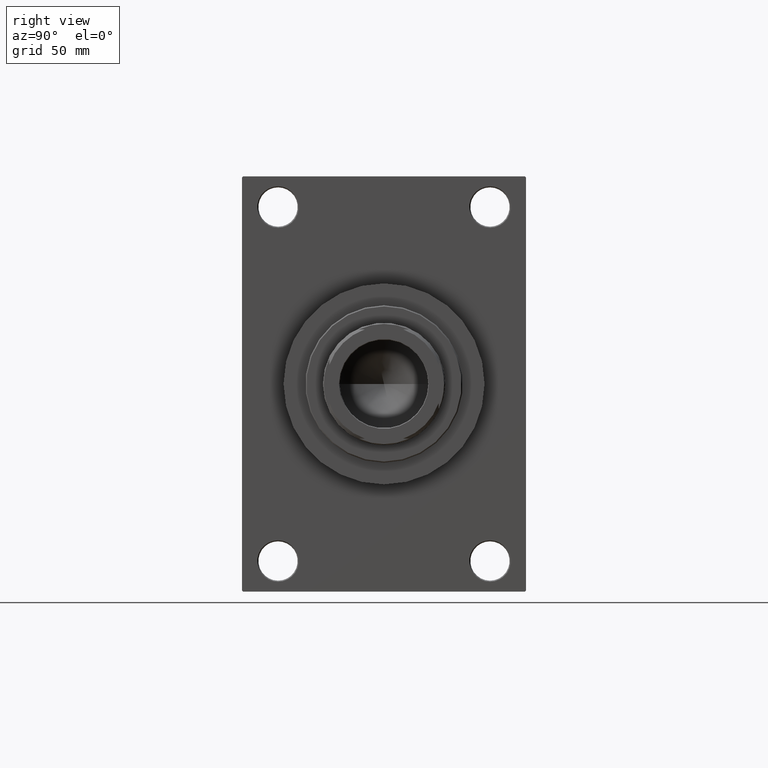
[diagram: clean part render]
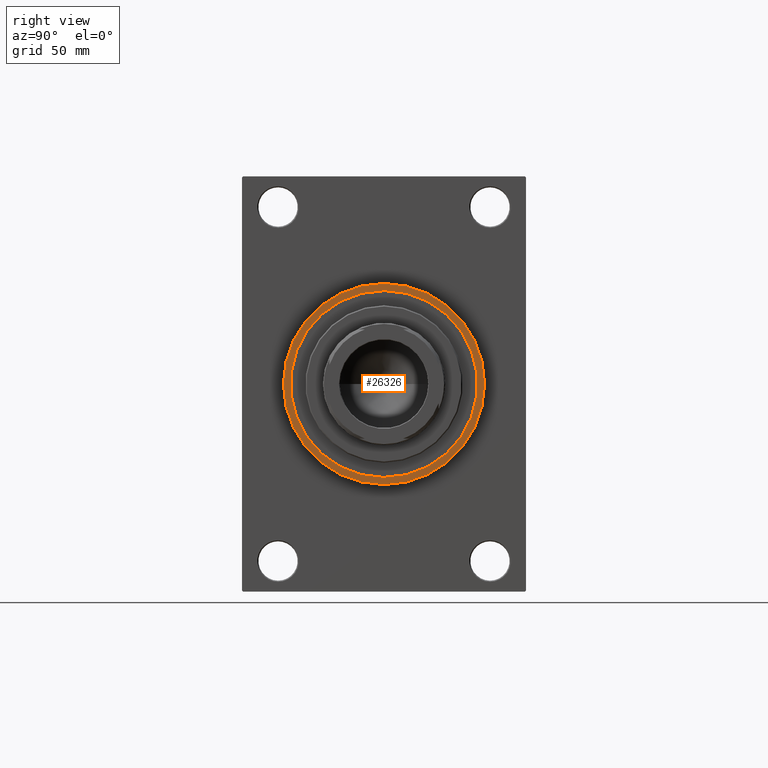
[diagram: same view with one face highlighted and labeled with its STEP entity id]
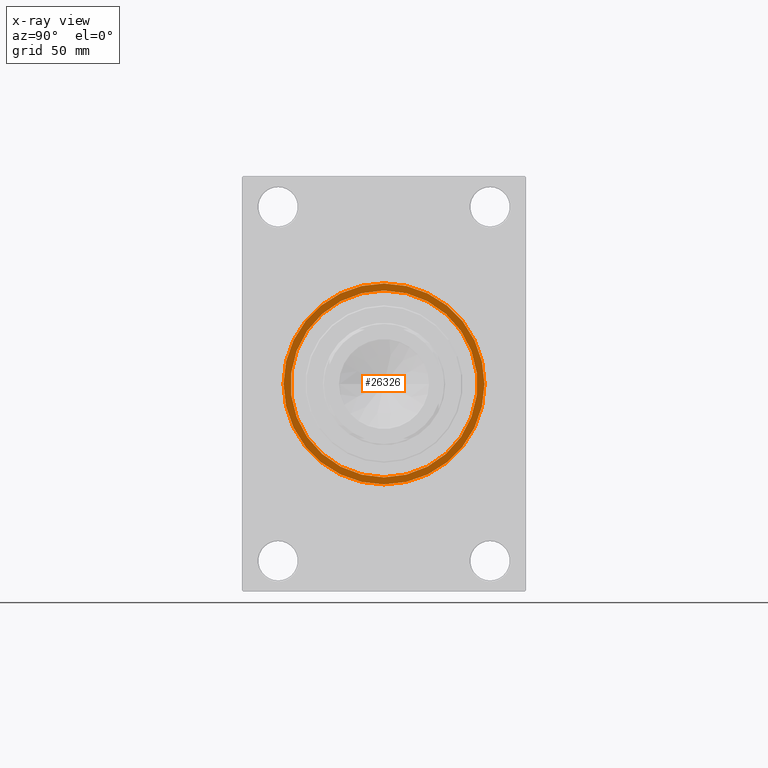
[diagram: x-ray of the same camera — body ghosted, the highlighted face saturated]
A machine part, right view. The second image highlights one B-rep face of the part: STEP entity #26326.
The next image is the same camera in x-ray: the body ghosted, the highlighted face saturated — about 0% of this face is hidden behind the body in this view.
In plain terms, the highlighted planar face has unit normal (1, 0, 0).
Its self-contained STEP definition (entity closure, byte-faithful):
#340 = DIRECTION ( 'NONE',  ( 0.000000000000000000, 0.000000000000000000, -1.000000000000000000 ) ) ;
#1463 = CARTESIAN_POINT ( 'NONE',  ( 187.9999999999999716, 0.000000000000000000, 0.000000000000000000 ) ) ;
#1556 = AXIS2_PLACEMENT_3D ( 'NONE', #46369, #28246, #31644 ) ;
#4665 = AXIS2_PLACEMENT_3D ( 'NONE', #1463, #37043, #340 ) ;
#4876 = ORIENTED_EDGE ( 'NONE', *, *, #30692, .T. ) ;
#6963 = VERTEX_POINT ( 'NONE', #40608 ) ;
#9472 = CARTESIAN_POINT ( 'NONE',  ( 187.9999999999999716, 0.000000000000000000, -42.75000000000000000 ) ) ;
#10481 = AXIS2_PLACEMENT_3D ( 'NONE', #29082, #10733, #40197 ) ;
#10733 = DIRECTION ( 'NONE',  ( 1.000000000000000000, 0.000000000000000000, 0.000000000000000000 ) ) ;
#10842 = PLANE ( 'NONE',  #19140 ) ;
#11540 = CARTESIAN_POINT ( 'NONE',  ( 187.9999999999999716, 5.235365066354935472E-15, 42.75000000000000000 ) ) ;
#12567 = VERTEX_POINT ( 'NONE', #9472 ) ;
#18301 = FACE_BOUND ( 'NONE', #41048, .T. ) ;
#19140 = AXIS2_PLACEMENT_3D ( 'NONE', #26017, #36191, #25550 ) ;
#19289 = VERTEX_POINT ( 'NONE', #11540 ) ;
#20078 = AXIS2_PLACEMENT_3D ( 'NONE', #42234, #24349, #27026 ) ;
#20774 = EDGE_CURVE ( 'NONE', #12567, #19289, #45184, .T. ) ;
#21212 = ORIENTED_EDGE ( 'NONE', *, *, #30722, .F. ) ;
#22350 = CIRCLE ( 'NONE', #1556, 42.75000000000000000 ) ;
#24349 = DIRECTION ( 'NONE',  ( 1.000000000000000000, 0.000000000000000000, 0.000000000000000000 ) ) ;
#25550 = DIRECTION ( 'NONE',  ( 0.000000000000000000, 0.000000000000000000, -1.000000000000000000 ) ) ;
#26017 = CARTESIAN_POINT ( 'NONE',  ( 187.9999999999999716, 0.000000000000000000, 0.000000000000000000 ) ) ;
#26326 = ADVANCED_FACE ( 'NONE', ( #18301, #44389 ), #10842, .T. ) ;
#26495 = VERTEX_POINT ( 'NONE', #26497 ) ;
#26497 = CARTESIAN_POINT ( 'NONE',  ( 187.9999999999999716, 5.633375276077824704E-15, -46.00000000000000000 ) ) ;
#27026 = DIRECTION ( 'NONE',  ( 0.000000000000000000, 0.000000000000000000, -1.000000000000000000 ) ) ;
#28246 = DIRECTION ( 'NONE',  ( 1.000000000000000000, 0.000000000000000000, 0.000000000000000000 ) ) ;
#29082 = CARTESIAN_POINT ( 'NONE',  ( 187.9999999999999716, 0.000000000000000000, 0.000000000000000000 ) ) ;
#30692 = EDGE_CURVE ( 'NONE', #6963, #26495, #43181, .T. ) ;
#30722 = EDGE_CURVE ( 'NONE', #19289, #12567, #22350, .T. ) ;
#31644 = DIRECTION ( 'NONE',  ( 0.000000000000000000, 0.000000000000000000, -1.000000000000000000 ) ) ;
#34748 = CIRCLE ( 'NONE', #20078, 46.00000000000000000 ) ;
#36191 = DIRECTION ( 'NONE',  ( 1.000000000000000000, 0.000000000000000000, 0.000000000000000000 ) ) ;
#36911 = EDGE_LOOP ( 'NONE', ( #4876, #39395 ) ) ;
#37043 = DIRECTION ( 'NONE',  ( 1.000000000000000000, 0.000000000000000000, 0.000000000000000000 ) ) ;
#39395 = ORIENTED_EDGE ( 'NONE', *, *, #43634, .T. ) ;
#39864 = ORIENTED_EDGE ( 'NONE', *, *, #20774, .F. ) ;
#40197 = DIRECTION ( 'NONE',  ( 0.000000000000000000, 0.000000000000000000, -1.000000000000000000 ) ) ;
#40608 = CARTESIAN_POINT ( 'NONE',  ( 187.9999999999999716, 0.000000000000000000, 46.00000000000000000 ) ) ;
#41048 = EDGE_LOOP ( 'NONE', ( #39864, #21212 ) ) ;
#42234 = CARTESIAN_POINT ( 'NONE',  ( 187.9999999999999716, 0.000000000000000000, 0.000000000000000000 ) ) ;
#43181 = CIRCLE ( 'NONE', #4665, 46.00000000000000000 ) ;
#43634 = EDGE_CURVE ( 'NONE', #26495, #6963, #34748, .T. ) ;
#44389 = FACE_OUTER_BOUND ( 'NONE', #36911, .T. ) ;
#45184 = CIRCLE ( 'NONE', #10481, 42.75000000000000000 ) ;
#46369 = CARTESIAN_POINT ( 'NONE',  ( 187.9999999999999716, 0.000000000000000000, 0.000000000000000000 ) ) ;